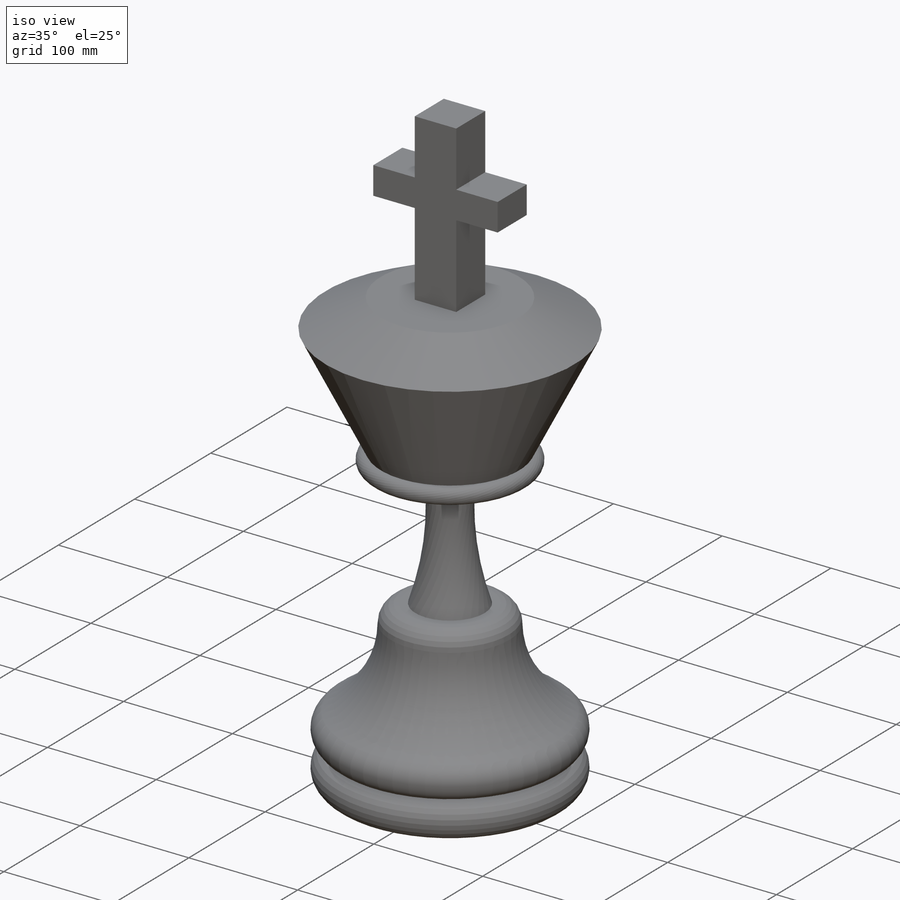
[diagram: iso view]
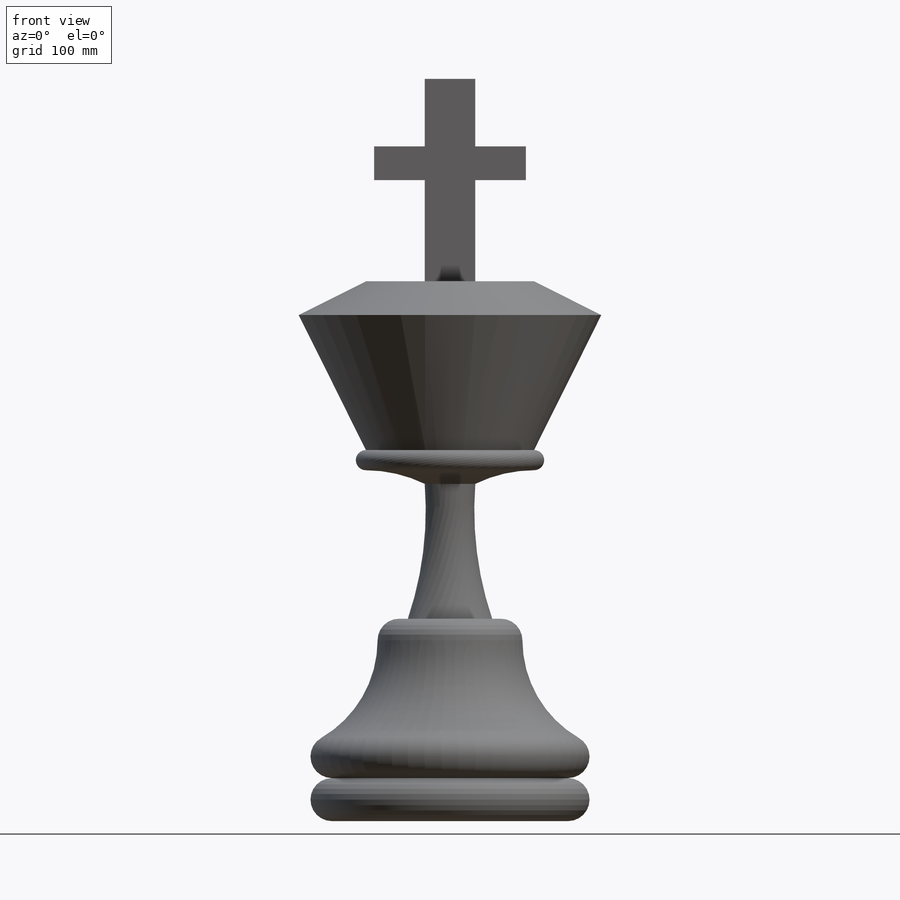
[diagram: front view]
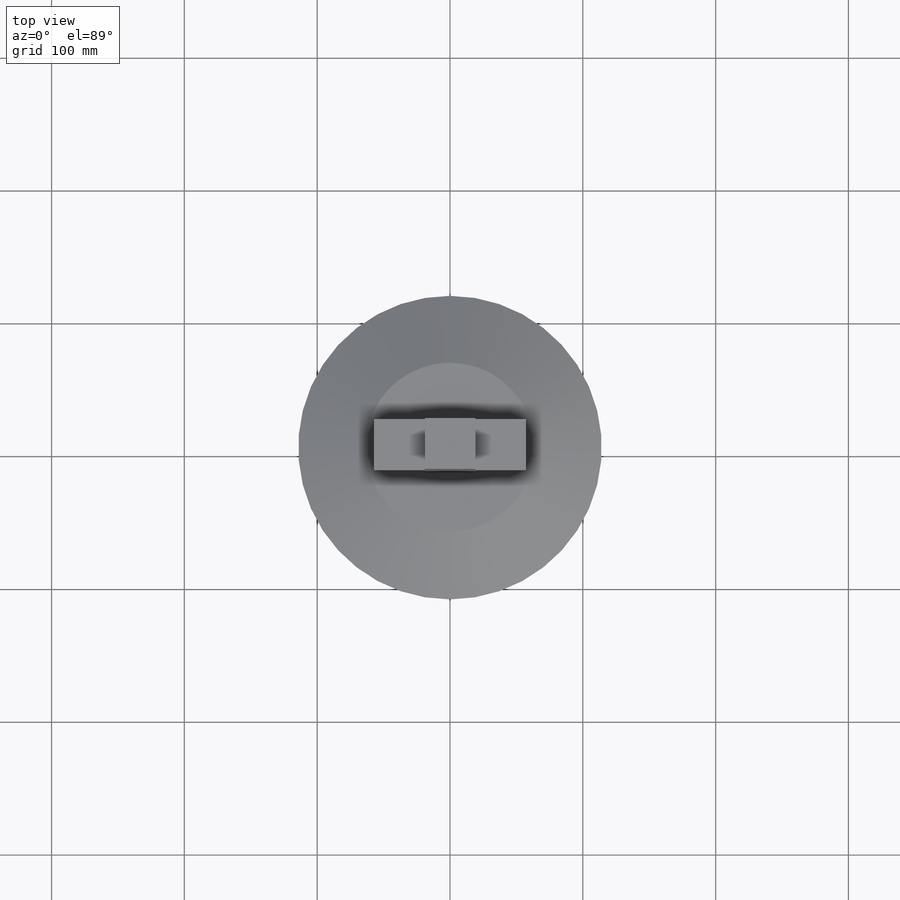
[diagram: top view]
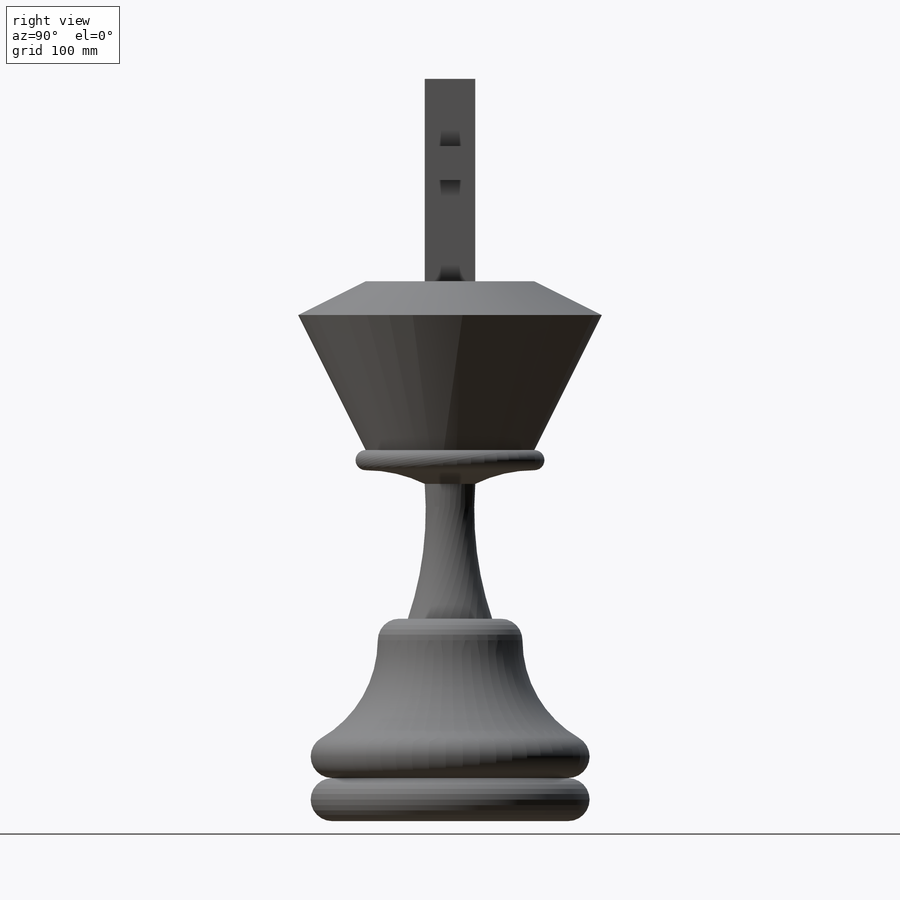
[diagram: right view]
SOLIDWORKS PART (.sldprt)
format: sldprt  version: not decoded by parser v0  size: 280,064 bytes
history: native  units: mm
features: sketch x4, revolve x3, material x1, extrude x1 (+16 scaffold rows collapsed)
feature tree (25):
  scaffold x16  (default folders/planes/origin — collapsed)
  material  "Material <not specified>"
  sketch  "Sketch1"  dims[c1.D1=84.8868mm c1.D2=88.9mm c1.D3=152.4mm c1.D4=~48.129752mm c2.D4=60.0deg]
  revolve  "Revolve2"  Angle=360deg
  sketch  "Sketch3"  dims[D1=101.6mm D2=254.0mm D7=7.62mm D3=38.1mm D4=127.0mm D5=127.0mm D6=63.5mm]
  revolve  "Revolve4"  Angle=360deg
  sketch  "Sketch4"  dims[D1=127.0mm D2=127.0mm D3=101.6mm]
  revolve  "Revolve5"  Angle=360deg
  sketch  "Sketch5"  dims[c1.D1=152.4mm c1.D2=25.4mm c1.D3=76.2mm c1.D4=38.1mm c1.D5=~29.022177mm c2.D5=~179.336897deg c3.D5=38.1mm]
  extrude  "Boss-Extrude1"  Depth=19.05mm
decode coverage: 8 of 8 modeling features carry decoded parameters
note: ~ marks probable driven/reference dimensions
note: suppression state not decoded; provenance and decode notes live in map.json
